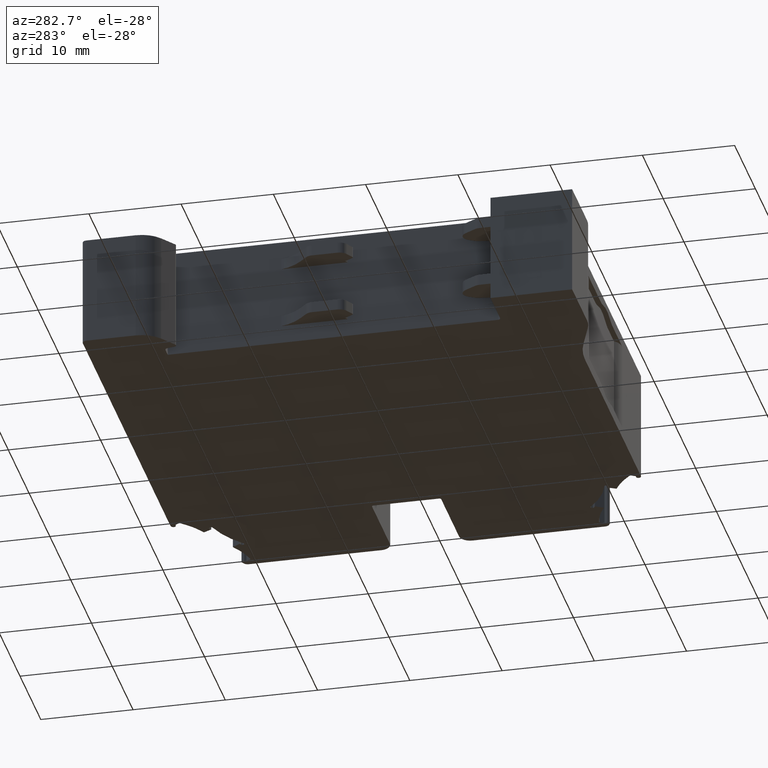
[diagram: clean part render]
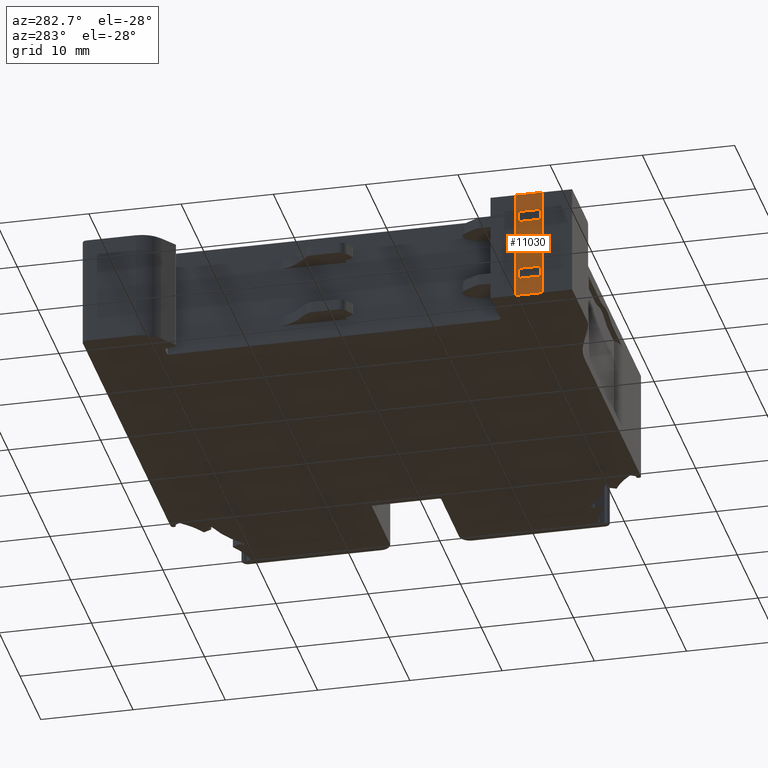
[diagram: same view with one face highlighted and labeled with its STEP entity id]
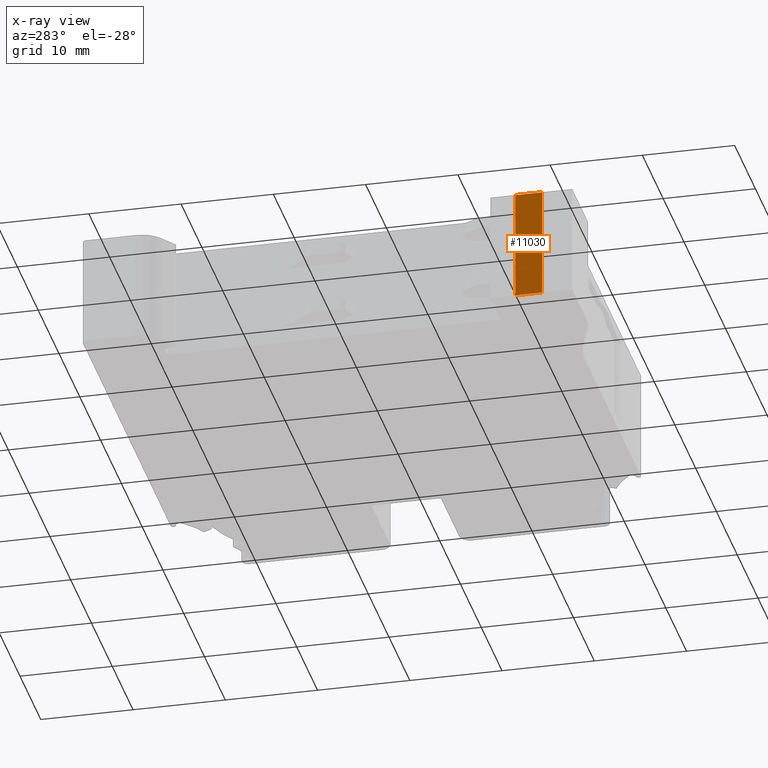
[diagram: x-ray of the same camera — body ghosted, the highlighted face saturated]
A machine part, auxiliary view. The second image highlights one B-rep face of the part: STEP entity #11030.
The next image is the same camera in x-ray: the body ghosted, the highlighted face saturated — about 0% of this face is hidden behind the body in this view.
In plain terms, the highlighted planar face has unit normal (1, 0, 0).
Its self-contained STEP definition (entity closure, byte-faithful):
#779 = DIRECTION ( 'NONE',  ( 1.020822514939665935E-26, -9.885498873573060928E-13, 1.000000000000000000 ) ) ;
#856 = ORIENTED_EDGE ( 'NONE', *, *, #1804, .F. ) ;
#1804 = EDGE_CURVE ( 'NONE', #6538, #1823, #12305, .T. ) ;
#1823 = VERTEX_POINT ( 'NONE', #4020 ) ;
#2332 = EDGE_LOOP ( 'NONE', ( #856, #8797, #5454, #14270 ) ) ;
#2898 = CARTESIAN_POINT ( 'NONE',  ( 517.7964640139779249, -74.63093544139645985, -51.46849684113610124 ) ) ;
#2912 = CARTESIAN_POINT ( 'NONE',  ( 517.7964640139779249, -77.54804421322027963, -51.46849684113924184 ) ) ;
#3049 = DIRECTION ( 'NONE',  ( 1.830474612861141827E-40, 1.000000000000000000, 1.077303488295632091E-12 ) ) ;
#4020 = CARTESIAN_POINT ( 'NONE',  ( 517.7964640139779249, -74.63093544139645985, -63.46407265014266130 ) ) ;
#4398 = LINE ( 'NONE', #15400, #13368 ) ;
#5005 = CARTESIAN_POINT ( 'NONE',  ( 517.7964717679766409, -78.34749865397809288, -74.10198201257415462 ) ) ;
#5454 = ORIENTED_EDGE ( 'NONE', *, *, #12160, .T. ) ;
#5457 = EDGE_CURVE ( 'NONE', #16738, #1823, #6749, .T. ) ;
#6110 = AXIS2_PLACEMENT_3D ( 'NONE', #5005, #14204, #779 ) ;
#6538 = VERTEX_POINT ( 'NONE', #7468 ) ;
#6749 = LINE ( 'NONE', #10900, #7600 ) ;
#7056 = EDGE_CURVE ( 'NONE', #12945, #6538, #7419, .T. ) ;
#7419 = LINE ( 'NONE', #8782, #13364 ) ;
#7468 = CARTESIAN_POINT ( 'NONE',  ( 517.7964640139779249, -77.54804421322020858, -63.46407265014267551 ) ) ;
#7600 = VECTOR ( 'NONE', #12263, 1000.000000000000000 ) ;
#8782 = CARTESIAN_POINT ( 'NONE',  ( 517.7964640139779249, -77.54804421322080543, 23.51836098756379556 ) ) ;
#8797 = ORIENTED_EDGE ( 'NONE', *, *, #7056, .F. ) ;
#9418 = DIRECTION ( 'NONE',  ( 0.000000000000000000, 1.000000000000000000, 4.757377558855376684E-15 ) ) ;
#10900 = CARTESIAN_POINT ( 'NONE',  ( 517.7964640139779249, -74.63093544139707092, 23.51836098756380977 ) ) ;
#11030 = ADVANCED_FACE ( 'NONE', ( #17360 ), #13123, .F. ) ;
#12160 = EDGE_CURVE ( 'NONE', #12945, #16738, #4398, .T. ) ;
#12263 = DIRECTION ( 'NONE',  ( -1.706662860027260475E-28, 6.982966722218760189E-15, -1.000000000000000000 ) ) ;
#12305 = LINE ( 'NONE', #16383, #17199 ) ;
#12945 = VERTEX_POINT ( 'NONE', #2912 ) ;
#13123 = PLANE ( 'NONE',  #6110 ) ;
#13364 = VECTOR ( 'NONE', #17275, 1000.000000000000000 ) ;
#13368 = VECTOR ( 'NONE', #3049, 1000.000000000000000 ) ;
#14204 = DIRECTION ( 'NONE',  ( 1.000000000000000000, 1.047444401652940164E-14, 1.462853032738900689E-28 ) ) ;
#14270 = ORIENTED_EDGE ( 'NONE', *, *, #5457, .T. ) ;
#15400 = CARTESIAN_POINT ( 'NONE',  ( 517.7964640139779249, -77.54804421314003093, -51.46849684113924184 ) ) ;
#16383 = CARTESIAN_POINT ( 'NONE',  ( 517.7964640139779249, -77.54804421322020858, -63.46407265014267551 ) ) ;
#16738 = VERTEX_POINT ( 'NONE', #2898 ) ;
#17199 = VECTOR ( 'NONE', #9418, 1000.000000000000000 ) ;
#17275 = DIRECTION ( 'NONE',  ( -1.706662860027260475E-28, 6.982966722218760189E-15, -1.000000000000000000 ) ) ;
#17360 = FACE_OUTER_BOUND ( 'NONE', #2332, .T. ) ;